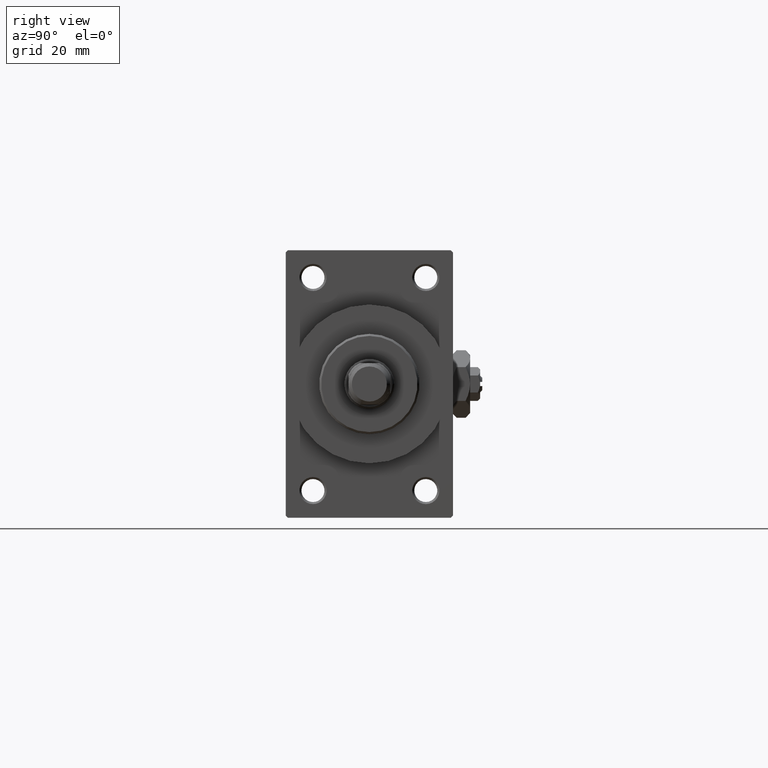
[diagram: clean part render]
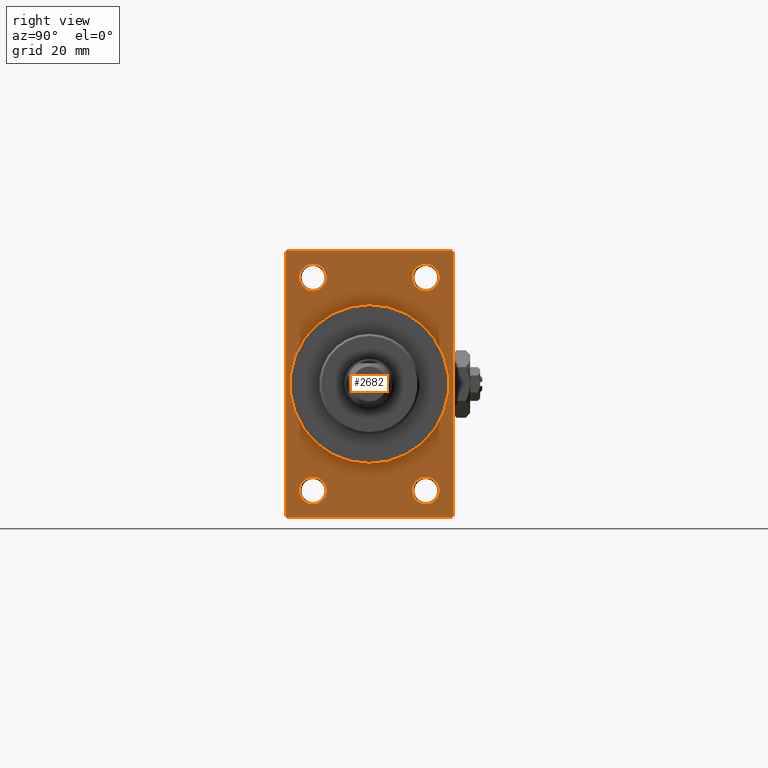
[diagram: same view with one face highlighted and labeled with its STEP entity id]
A machine part, right view. The second image highlights one B-rep face of the part: STEP entity #2682.
In plain terms, the highlighted planar face has unit normal (-1, 0, 0).
Its self-contained STEP definition (entity closure, byte-faithful):
#52 = ORIENTED_EDGE ( 'NONE', *, *, #12356, .T. ) ;
#1166 = VERTEX_POINT ( 'NONE', #1221 ) ;
#1221 = CARTESIAN_POINT ( 'NONE',  ( 109.0000000000000142, -19.49999999999998579, 31.99999999999999289 ) ) ;
#1514 = VERTEX_POINT ( 'NONE', #12191 ) ;
#1629 = CARTESIAN_POINT ( 'NONE',  ( 109.0000000000000142, 20.00000000000000000, 32.00000000000000000 ) ) ;
#2475 = DIRECTION ( 'NONE',  ( 0.000000000000000000, -1.000000000000000000, -1.734723475976807094E-16 ) ) ;
#2623 = FACE_BOUND ( 'NONE', #33863, .T. ) ;
#2682 = ADVANCED_FACE ( 'NONE', ( #24691, #5897, #36951, #2623, #9410, #5661 ), #33182, .F. ) ;
#3736 = CARTESIAN_POINT ( 'NONE',  ( 109.0000000000000142, -13.50000000000000533, -25.49999999999999645 ) ) ;
#3816 = EDGE_CURVE ( 'NONE', #12236, #33509, #18095, .T. ) ;
#3821 = CARTESIAN_POINT ( 'NONE',  ( 109.0000000000000142, 2.326828918379970970E-15, -19.00000000000000000 ) ) ;
#4854 = EDGE_LOOP ( 'NONE', ( #18408, #15831 ) ) ;
#4979 = VERTEX_POINT ( 'NONE', #12253 ) ;
#5113 = DIRECTION ( 'NONE',  ( 0.000000000000000000, 0.000000000000000000, 1.000000000000000000 ) ) ;
#5661 = FACE_OUTER_BOUND ( 'NONE', #15828, .T. ) ;
#5880 = VECTOR ( 'NONE', #15098, 1000.000000000000000 ) ;
#5897 = FACE_BOUND ( 'NONE', #38760, .T. ) ;
#7224 = CARTESIAN_POINT ( 'NONE',  ( 109.0000000000000142, -20.00000000000000000, 31.49999999999997868 ) ) ;
#7231 = CIRCLE ( 'NONE', #19260, 3.250000000000002665 ) ;
#7543 = VERTEX_POINT ( 'NONE', #44670 ) ;
#7891 = CARTESIAN_POINT ( 'NONE',  ( 109.0000000000000142, -13.50000000000000533, -25.49999999999999645 ) ) ;
#7993 = VERTEX_POINT ( 'NONE', #25088 ) ;
#8601 = LINE ( 'NONE', #39399, #42219 ) ;
#8746 = AXIS2_PLACEMENT_3D ( 'NONE', #17817, #33096, #48605 ) ;
#9024 = ORIENTED_EDGE ( 'NONE', *, *, #32089, .F. ) ;
#9105 = DIRECTION ( 'NONE',  ( -1.000000000000000000, -0.000000000000000000, -0.000000000000000000 ) ) ;
#9395 = EDGE_CURVE ( 'NONE', #33509, #12236, #38290, .T. ) ;
#9410 = FACE_BOUND ( 'NONE', #36611, .T. ) ;
#9649 = CARTESIAN_POINT ( 'NONE',  ( 109.0000000000000142, 20.00000000000000000, -31.49999999999998579 ) ) ;
#9738 = CARTESIAN_POINT ( 'NONE',  ( 109.0000000000000142, 19.49999999999998579, 32.00000000000000000 ) ) ;
#10269 = CIRCLE ( 'NONE', #29441, 19.00000000000000000 ) ;
#10419 = DIRECTION ( 'NONE',  ( -1.000000000000000000, -0.000000000000000000, -0.000000000000000000 ) ) ;
#10713 = ORIENTED_EDGE ( 'NONE', *, *, #17575, .T. ) ;
#10736 = AXIS2_PLACEMENT_3D ( 'NONE', #17597, #24616, #28623 ) ;
#11041 = EDGE_CURVE ( 'NONE', #15674, #22407, #8601, .T. ) ;
#11916 = CARTESIAN_POINT ( 'NONE',  ( 109.0000000000000142, -13.50000000000000178, 25.50000000000000355 ) ) ;
#12191 = CARTESIAN_POINT ( 'NONE',  ( 109.0000000000000142, 0.000000000000000000, 19.00000000000000000 ) ) ;
#12236 = VERTEX_POINT ( 'NONE', #28554 ) ;
#12253 = CARTESIAN_POINT ( 'NONE',  ( 109.0000000000000142, 20.00000000000000000, 31.49999999999998579 ) ) ;
#12356 = EDGE_CURVE ( 'NONE', #40418, #15674, #23110, .T. ) ;
#12424 = VERTEX_POINT ( 'NONE', #3821 ) ;
#12755 = CARTESIAN_POINT ( 'NONE',  ( 109.0000000000000142, -13.50000000000000178, 25.50000000000000355 ) ) ;
#12860 = EDGE_CURVE ( 'NONE', #14512, #18339, #42672, .T. ) ;
#13338 = ORIENTED_EDGE ( 'NONE', *, *, #37477, .T. ) ;
#14044 = DIRECTION ( 'NONE',  ( -0.000000000000000000, -0.7071067811865474617, -0.7071067811865474617 ) ) ;
#14151 = DIRECTION ( 'NONE',  ( -1.000000000000000000, 0.000000000000000000, -0.000000000000000000 ) ) ;
#14512 = VERTEX_POINT ( 'NONE', #48387 ) ;
#14636 = EDGE_CURVE ( 'NONE', #36076, #22407, #41650, .T. ) ;
#15098 = DIRECTION ( 'NONE',  ( 0.000000000000000000, 0.000000000000000000, -1.000000000000000000 ) ) ;
#15267 = VERTEX_POINT ( 'NONE', #16700 ) ;
#15406 = CIRCLE ( 'NONE', #43384, 3.250000000000002665 ) ;
#15482 = AXIS2_PLACEMENT_3D ( 'NONE', #12755, #27786, #46314 ) ;
#15674 = VERTEX_POINT ( 'NONE', #33917 ) ;
#15828 = EDGE_LOOP ( 'NONE', ( #52, #19147, #31174, #42862, #40997, #43339, #24943, #16322 ) ) ;
#15831 = ORIENTED_EDGE ( 'NONE', *, *, #12860, .T. ) ;
#15888 = DIRECTION ( 'NONE',  ( 0.000000000000000000, 0.7071067811865426878, -0.7071067811865524577 ) ) ;
#16322 = ORIENTED_EDGE ( 'NONE', *, *, #40094, .T. ) ;
#16338 = CIRCLE ( 'NONE', #10736, 3.249999999999961364 ) ;
#16700 = CARTESIAN_POINT ( 'NONE',  ( 109.0000000000000142, -13.50000000000000533, -28.74999999999999645 ) ) ;
#16908 = DIRECTION ( 'NONE',  ( 0.000000000000000000, 0.000000000000000000, -1.000000000000000000 ) ) ;
#17445 = DIRECTION ( 'NONE',  ( 0.000000000000000000, 0.000000000000000000, 1.000000000000000000 ) ) ;
#17575 = EDGE_CURVE ( 'NONE', #43565, #7543, #16338, .T. ) ;
#17597 = CARTESIAN_POINT ( 'NONE',  ( 109.0000000000000142, 13.49999999999999822, 25.50000000000000355 ) ) ;
#17817 = CARTESIAN_POINT ( 'NONE',  ( 109.0000000000000142, 0.000000000000000000, 0.000000000000000000 ) ) ;
#18003 = LINE ( 'NONE', #9738, #49485 ) ;
#18095 = CIRCLE ( 'NONE', #46088, 3.250000000000002665 ) ;
#18339 = VERTEX_POINT ( 'NONE', #38386 ) ;
#18408 = ORIENTED_EDGE ( 'NONE', *, *, #30774, .T. ) ;
#18522 = DIRECTION ( 'NONE',  ( -1.000000000000000000, -0.000000000000000000, -0.000000000000000000 ) ) ;
#18556 = CARTESIAN_POINT ( 'NONE',  ( 109.0000000000000142, 13.49999999999999822, 25.50000000000000355 ) ) ;
#18819 = VECTOR ( 'NONE', #14044, 1000.000000000000114 ) ;
#19147 = ORIENTED_EDGE ( 'NONE', *, *, #11041, .T. ) ;
#19260 = AXIS2_PLACEMENT_3D ( 'NONE', #3736, #18522, #26282 ) ;
#19364 = CARTESIAN_POINT ( 'NONE',  ( 109.0000000000000142, 0.000000000000000000, 0.000000000000000000 ) ) ;
#19577 = ORIENTED_EDGE ( 'NONE', *, *, #3816, .T. ) ;
#20920 = CARTESIAN_POINT ( 'NONE',  ( 109.0000000000000142, 0.000000000000000000, 0.000000000000000000 ) ) ;
#21928 = VECTOR ( 'NONE', #37148, 1000.000000000000000 ) ;
#22298 = CIRCLE ( 'NONE', #36701, 3.250000000000002665 ) ;
#22407 = VERTEX_POINT ( 'NONE', #48940 ) ;
#22800 = VERTEX_POINT ( 'NONE', #23122 ) ;
#23110 = LINE ( 'NONE', #38635, #5880 ) ;
#23122 = CARTESIAN_POINT ( 'NONE',  ( 109.0000000000000142, 19.49999999999998579, 32.00000000000000000 ) ) ;
#23171 = DIRECTION ( 'NONE',  ( 0.000000000000000000, 0.000000000000000000, 1.000000000000000000 ) ) ;
#24454 = VERTEX_POINT ( 'NONE', #45323 ) ;
#24616 = DIRECTION ( 'NONE',  ( -1.000000000000000000, -0.000000000000000000, -0.000000000000000000 ) ) ;
#24691 = FACE_BOUND ( 'NONE', #4854, .T. ) ;
#24943 = ORIENTED_EDGE ( 'NONE', *, *, #49501, .T. ) ;
#25088 = CARTESIAN_POINT ( 'NONE',  ( 109.0000000000000142, -13.50000000000000533, -22.24999999999999289 ) ) ;
#26282 = DIRECTION ( 'NONE',  ( 0.000000000000000000, 0.000000000000000000, 1.000000000000000000 ) ) ;
#27197 = DIRECTION ( 'NONE',  ( -1.000000000000000000, -0.000000000000000000, -0.000000000000000000 ) ) ;
#27198 = EDGE_CURVE ( 'NONE', #12424, #1514, #10269, .T. ) ;
#27378 = EDGE_CURVE ( 'NONE', #7543, #43565, #39856, .T. ) ;
#27786 = DIRECTION ( 'NONE',  ( -1.000000000000000000, -0.000000000000000000, -0.000000000000000000 ) ) ;
#28554 = CARTESIAN_POINT ( 'NONE',  ( 109.0000000000000142, 13.49999999999999822, -28.75000000000000000 ) ) ;
#28623 = DIRECTION ( 'NONE',  ( 0.000000000000000000, 0.000000000000000000, 1.000000000000000000 ) ) ;
#28682 = EDGE_CURVE ( 'NONE', #4979, #22800, #18003, .T. ) ;
#28838 = DIRECTION ( 'NONE',  ( 0.000000000000000000, 0.000000000000000000, 1.000000000000000000 ) ) ;
#29125 = EDGE_CURVE ( 'NONE', #4979, #24454, #43433, .T. ) ;
#29274 = CARTESIAN_POINT ( 'NONE',  ( 109.0000000000000142, 20.00000000000000000, 32.00000000000000000 ) ) ;
#29441 = AXIS2_PLACEMENT_3D ( 'NONE', #19364, #34152, #34406 ) ;
#29647 = VECTOR ( 'NONE', #33177, 1000.000000000000114 ) ;
#29739 = CARTESIAN_POINT ( 'NONE',  ( 109.0000000000000142, 19.49999999999998579, -32.00000000000000000 ) ) ;
#29911 = ORIENTED_EDGE ( 'NONE', *, *, #27198, .F. ) ;
#30774 = EDGE_CURVE ( 'NONE', #18339, #14512, #22298, .T. ) ;
#31174 = ORIENTED_EDGE ( 'NONE', *, *, #14636, .F. ) ;
#32089 = EDGE_CURVE ( 'NONE', #1514, #12424, #42314, .T. ) ;
#33083 = LINE ( 'NONE', #48328, #18819 ) ;
#33096 = DIRECTION ( 'NONE',  ( 1.000000000000000000, 0.000000000000000000, 0.000000000000000000 ) ) ;
#33177 = DIRECTION ( 'NONE',  ( -0.000000000000000000, 0.7071067811865474617, 0.7071067811865474617 ) ) ;
#33182 = PLANE ( 'NONE',  #46047 ) ;
#33358 = EDGE_LOOP ( 'NONE', ( #19577, #43820 ) ) ;
#33509 = VERTEX_POINT ( 'NONE', #48504 ) ;
#33863 = EDGE_LOOP ( 'NONE', ( #47375, #10713 ) ) ;
#33885 = CARTESIAN_POINT ( 'NONE',  ( 109.0000000000000142, 13.49999999999999822, 28.74999999999996803 ) ) ;
#33917 = CARTESIAN_POINT ( 'NONE',  ( 109.0000000000000142, -20.00000000000000000, -31.49999999999997868 ) ) ;
#34152 = DIRECTION ( 'NONE',  ( 1.000000000000000000, 0.000000000000000000, 0.000000000000000000 ) ) ;
#34218 = DIRECTION ( 'NONE',  ( 0.000000000000000000, 0.000000000000000000, 1.000000000000000000 ) ) ;
#34293 = AXIS2_PLACEMENT_3D ( 'NONE', #18556, #36853, #28838 ) ;
#34406 = DIRECTION ( 'NONE',  ( 0.000000000000000000, 0.000000000000000000, -1.000000000000000000 ) ) ;
#34694 = DIRECTION ( 'NONE',  ( -1.000000000000000000, -0.000000000000000000, -0.000000000000000000 ) ) ;
#34977 = EDGE_CURVE ( 'NONE', #7993, #15267, #7231, .T. ) ;
#36076 = VERTEX_POINT ( 'NONE', #29739 ) ;
#36263 = EDGE_CURVE ( 'NONE', #36076, #24454, #47684, .T. ) ;
#36611 = EDGE_LOOP ( 'NONE', ( #9024, #29911 ) ) ;
#36701 = AXIS2_PLACEMENT_3D ( 'NONE', #11916, #27197, #34218 ) ;
#36805 = DIRECTION ( 'NONE',  ( 0.000000000000000000, -0.7071067811865474617, 0.7071067811865474617 ) ) ;
#36853 = DIRECTION ( 'NONE',  ( -1.000000000000000000, -0.000000000000000000, -0.000000000000000000 ) ) ;
#36951 = FACE_BOUND ( 'NONE', #33358, .T. ) ;
#37148 = DIRECTION ( 'NONE',  ( 0.000000000000000000, -1.000000000000000000, 0.000000000000000000 ) ) ;
#37406 = VECTOR ( 'NONE', #2475, 1000.000000000000000 ) ;
#37477 = EDGE_CURVE ( 'NONE', #15267, #7993, #15406, .T. ) ;
#38290 = CIRCLE ( 'NONE', #43061, 3.250000000000002665 ) ;
#38386 = CARTESIAN_POINT ( 'NONE',  ( 109.0000000000000142, -13.50000000000000178, 22.25000000000000000 ) ) ;
#38635 = CARTESIAN_POINT ( 'NONE',  ( 109.0000000000000142, -20.00000000000000000, 31.99999999999999289 ) ) ;
#38760 = EDGE_LOOP ( 'NONE', ( #13338, #40132 ) ) ;
#38951 = CARTESIAN_POINT ( 'NONE',  ( 109.0000000000000142, 13.49999999999999822, -25.50000000000000000 ) ) ;
#39399 = CARTESIAN_POINT ( 'NONE',  ( 109.0000000000000142, -19.49999999999998579, -32.00000000000000000 ) ) ;
#39856 = CIRCLE ( 'NONE', #34293, 3.249999999999961364 ) ;
#40094 = EDGE_CURVE ( 'NONE', #1166, #40418, #33083, .T. ) ;
#40132 = ORIENTED_EDGE ( 'NONE', *, *, #34977, .T. ) ;
#40418 = VERTEX_POINT ( 'NONE', #7224 ) ;
#40732 = CARTESIAN_POINT ( 'NONE',  ( 109.0000000000000142, 13.49999999999999822, -25.50000000000000000 ) ) ;
#40945 = DIRECTION ( 'NONE',  ( -0.000000000000000000, 0.000000000000000000, 1.000000000000000000 ) ) ;
#40997 = ORIENTED_EDGE ( 'NONE', *, *, #29125, .F. ) ;
#41414 = VECTOR ( 'NONE', #16908, 1000.000000000000000 ) ;
#41650 = LINE ( 'NONE', #44894, #21928 ) ;
#42219 = VECTOR ( 'NONE', #15888, 1000.000000000000000 ) ;
#42314 = CIRCLE ( 'NONE', #8746, 19.00000000000000000 ) ;
#42672 = CIRCLE ( 'NONE', #15482, 3.250000000000002665 ) ;
#42862 = ORIENTED_EDGE ( 'NONE', *, *, #36263, .T. ) ;
#43061 = AXIS2_PLACEMENT_3D ( 'NONE', #40732, #10419, #17445 ) ;
#43339 = ORIENTED_EDGE ( 'NONE', *, *, #28682, .T. ) ;
#43384 = AXIS2_PLACEMENT_3D ( 'NONE', #7891, #34694, #23171 ) ;
#43433 = LINE ( 'NONE', #1629, #41414 ) ;
#43565 = VERTEX_POINT ( 'NONE', #33885 ) ;
#43820 = ORIENTED_EDGE ( 'NONE', *, *, #9395, .T. ) ;
#44670 = CARTESIAN_POINT ( 'NONE',  ( 109.0000000000000142, 13.49999999999999822, 22.25000000000004263 ) ) ;
#44894 = CARTESIAN_POINT ( 'NONE',  ( 109.0000000000000142, 20.00000000000000000, -32.00000000000000000 ) ) ;
#45323 = CARTESIAN_POINT ( 'NONE',  ( 109.0000000000000142, 20.00000000000000000, -31.49999999999998579 ) ) ;
#46047 = AXIS2_PLACEMENT_3D ( 'NONE', #20920, #14151, #40945 ) ;
#46088 = AXIS2_PLACEMENT_3D ( 'NONE', #38951, #9105, #5113 ) ;
#46314 = DIRECTION ( 'NONE',  ( 0.000000000000000000, 0.000000000000000000, 1.000000000000000000 ) ) ;
#47375 = ORIENTED_EDGE ( 'NONE', *, *, #27378, .T. ) ;
#47684 = LINE ( 'NONE', #9649, #29647 ) ;
#48030 = LINE ( 'NONE', #29274, #37406 ) ;
#48328 = CARTESIAN_POINT ( 'NONE',  ( 109.0000000000000142, -20.00000000000000000, 31.49999999999997868 ) ) ;
#48387 = CARTESIAN_POINT ( 'NONE',  ( 109.0000000000000142, -13.50000000000000178, 28.75000000000000355 ) ) ;
#48504 = CARTESIAN_POINT ( 'NONE',  ( 109.0000000000000142, 13.49999999999999822, -22.24999999999999645 ) ) ;
#48605 = DIRECTION ( 'NONE',  ( 0.000000000000000000, 0.000000000000000000, -1.000000000000000000 ) ) ;
#48940 = CARTESIAN_POINT ( 'NONE',  ( 109.0000000000000142, -19.49999999999998579, -32.00000000000000000 ) ) ;
#49485 = VECTOR ( 'NONE', #36805, 1000.000000000000114 ) ;
#49501 = EDGE_CURVE ( 'NONE', #22800, #1166, #48030, .T. ) ;